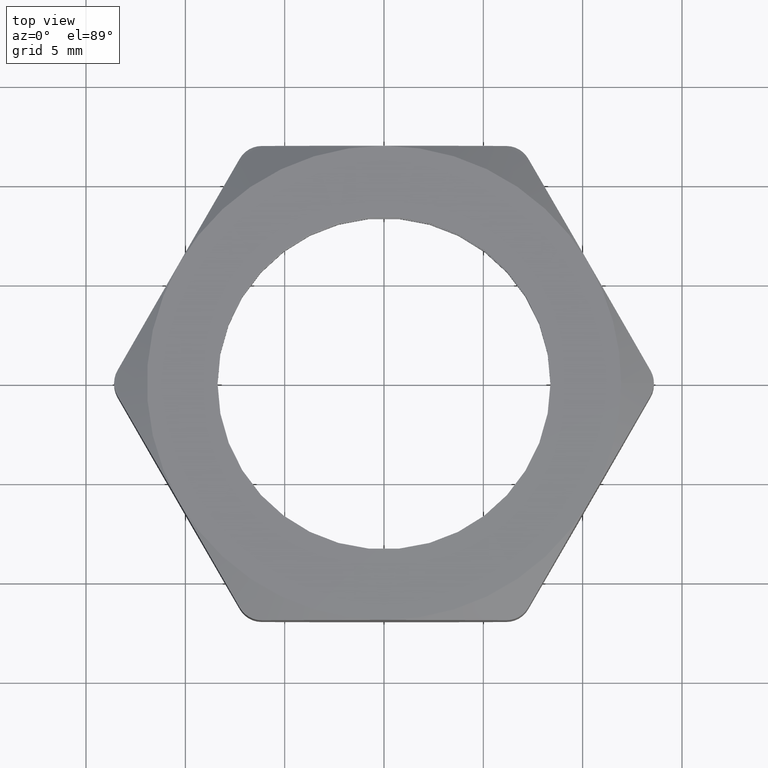
[diagram: clean part render]
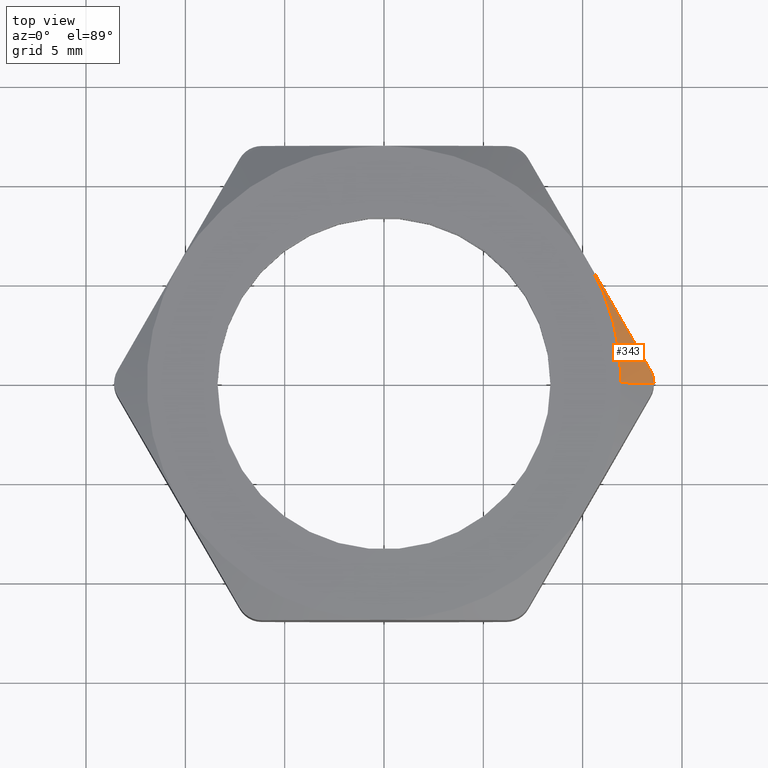
[diagram: same view with one face highlighted and labeled with its STEP entity id]
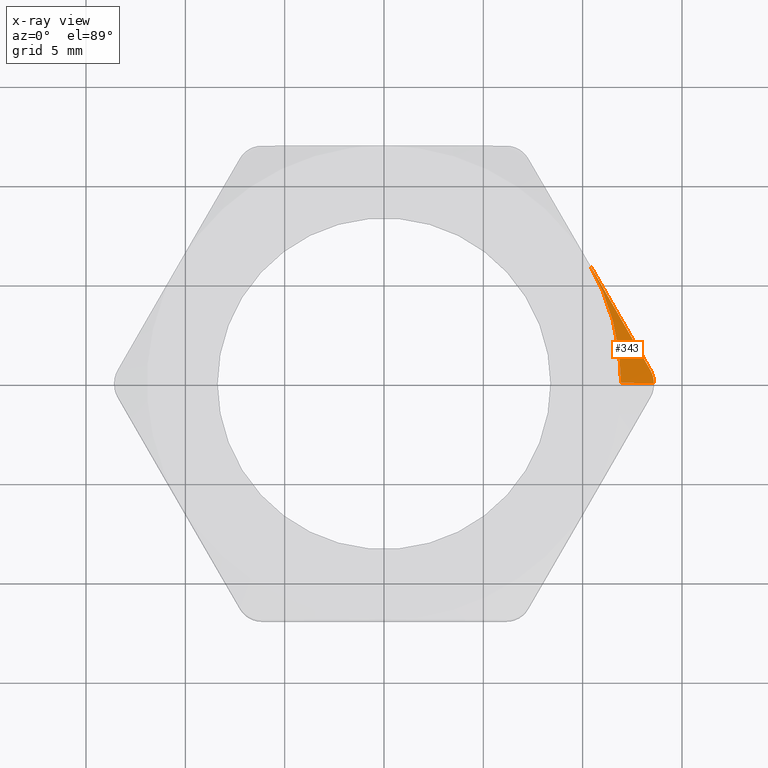
[diagram: x-ray of the same camera — body ghosted, the highlighted face saturated]
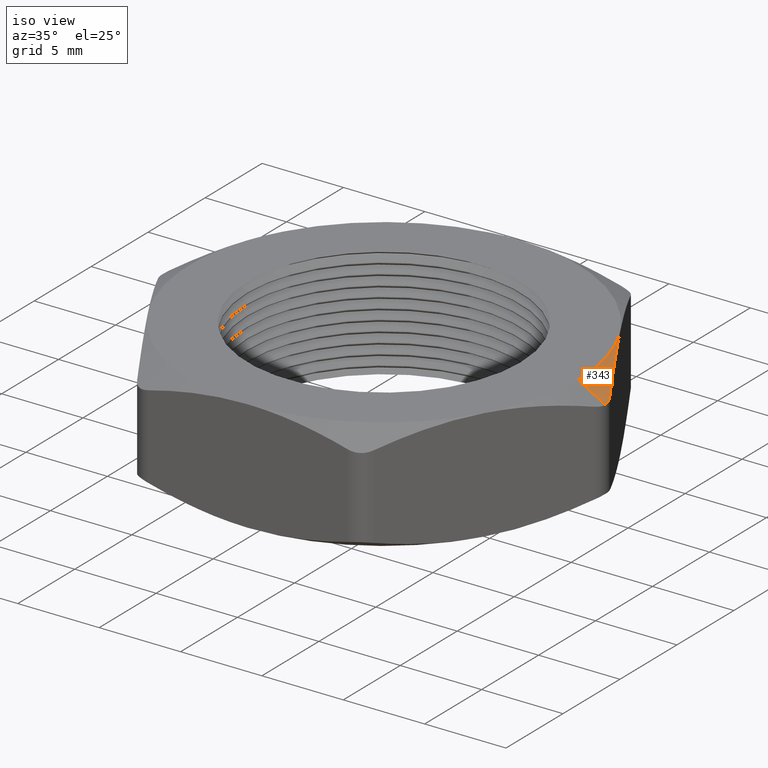
[diagram: same view with one face highlighted and labeled with its STEP entity id]
A machine part, top view. The second image highlights one B-rep face of the part: STEP entity #343.
The next image is the same camera in x-ray: the body ghosted, the highlighted face saturated — about 0% of this face is hidden behind the body in this view.
A second angle (iso view) of the same face is appended — the face is thin or edge-on in the first view.
In plain terms, the highlighted conical surface has half-angle 60 deg.
Its self-contained STEP definition (entity closure, byte-faithful):
#304 = ORIENTED_EDGE ( 'NONE', *, *, #309, .F. ) ;
#307 = VERTEX_POINT ( 'NONE', #1185 ) ;
#309 = EDGE_CURVE ( 'NONE', #307, #330, #1241, .T. ) ;
#330 = VERTEX_POINT ( 'NONE', #1219 ) ;
#334 = VERTEX_POINT ( 'NONE', #1266 ) ;
#336 = ORIENTED_EDGE ( 'NONE', *, *, #337, .T. ) ;
#337 = EDGE_CURVE ( 'NONE', #307, #334, #1265, .T. ) ;
#340 = EDGE_LOOP ( 'NONE', ( #304, #336, #348, #347 ) ) ;
#341 = VERTEX_POINT ( 'NONE', #1256 ) ;
#343 = ADVANCED_FACE ( 'NONE', ( #1255 ), #1254, .T. ) ;
#347 = ORIENTED_EDGE ( 'NONE', *, *, #354, .T. ) ;
#348 = ORIENTED_EDGE ( 'NONE', *, *, #350, .T. ) ;
#350 = EDGE_CURVE ( 'NONE', #334, #341, #1293, .T. ) ;
#354 = EDGE_CURVE ( 'NONE', #341, #330, #1273, .T. ) ;
#1185 = CARTESIAN_POINT ( 'NONE',  ( 0.4700000000000000300, 0.0000000000000000000, 0.2700000000000000200 ) ) ;
#1219 = CARTESIAN_POINT ( 'NONE',  ( 0.4070319397786861200, 0.2349999999999998800, 0.2700000000000000200 ) ) ;
#1237 = DIRECTION ( 'NONE',  ( 1.000000000000000000, 0.0000000000000000000, 0.0000000000000000000 ) ) ;
#1238 = DIRECTION ( 'NONE',  ( 0.0000000000000000000, 0.0000000000000000000, 1.000000000000000000 ) ) ;
#1239 = CARTESIAN_POINT ( 'NONE',  ( 0.0000000000000000000, 0.0000000000000000000, 0.2700000000000000200 ) ) ;
#1240 = AXIS2_PLACEMENT_3D ( 'NONE', #1239, #1238, #1237 ) ;
#1241 = CIRCLE ( 'NONE', #1240, 0.4700000000000000300 ) ;
#1250 = DIRECTION ( 'NONE',  ( 1.000000000000000000, 0.0000000000000000000, 0.0000000000000000000 ) ) ;
#1251 = DIRECTION ( 'NONE',  ( 0.0000000000000000000, 0.0000000000000000000, -1.000000000000000000 ) ) ;
#1252 = CARTESIAN_POINT ( 'NONE',  ( 0.0000000000000000000, 0.0000000000000000000, 0.2700000000000000200 ) ) ;
#1253 = AXIS2_PLACEMENT_3D ( 'NONE', #1252, #1251, #1250 ) ;
#1254 = CONICAL_SURFACE ( 'NONE', #1253, 0.4700000000000000300, 1.047197551196600100 ) ;
#1255 = FACE_OUTER_BOUND ( 'NONE', #340, .T. ) ;
#1256 = CARTESIAN_POINT ( 'NONE',  ( 0.5282754963085003500, 0.02500000000001230800, 0.2360132874683320800 ) ) ;
#1262 = DIRECTION ( 'NONE',  ( 0.8660254037844397100, 0.0000000000000000000, -0.4999999999999979500 ) ) ;
#1263 = VECTOR ( 'NONE', #1262, 39.37007874015748900 ) ;
#1264 = CARTESIAN_POINT ( 'NONE',  ( 0.4700000000000000300, 0.0000000000000000000, 0.2700000000000000200 ) ) ;
#1265 = LINE ( 'NONE', #1264, #1263 ) ;
#1266 = CARTESIAN_POINT ( 'NONE',  ( 0.5349742261194077000, 1.394389015858412700E-014, 0.2324871130595792300 ) ) ;
#1267 = CARTESIAN_POINT ( 'NONE',  ( 0.4480322198200164500, 0.1639854318438635800, 0.2668266885615935300 ) ) ;
#1268 = CARTESIAN_POINT ( 'NONE',  ( 0.4884164419327131600, 0.09403790732052620700, 0.2550759609575153900 ) ) ;
#1269 = CARTESIAN_POINT ( 'NONE',  ( 0.5084165473401796000, 0.05939670859806095400, 0.2465272895328116700 ) ) ;
#1270 = CARTESIAN_POINT ( 'NONE',  ( 0.5282754963085003500, 0.02500000000001230800, 0.2360132874683320800 ) ) ;
#1273 = B_SPLINE_CURVE_WITH_KNOTS ( 'NONE', 3,
 ( #1270, #1269, #1268, #1267, #1324, #1323 ),
 .UNSPECIFIED., .F., .F.,
 ( 4, 2, 4 ),
 ( 0.0007548866005694034200, 0.003864556118015261100, 0.006974225635461118300 ),
 .UNSPECIFIED. ) ;
#1287 = CARTESIAN_POINT ( 'NONE',  ( 0.5282754963085003500, 0.02500000000001230800, 0.2360132874683320800 ) ) ;
#1288 = CARTESIAN_POINT ( 'NONE',  ( 0.5304237173392516400, 0.02127917202886681400, 0.2348759462934132400 ) ) ;
#1289 = CARTESIAN_POINT ( 'NONE',  ( 0.5321149342017708100, 0.01722339589642633500, 0.2339867053256985100 ) ) ;
#1290 = CARTESIAN_POINT ( 'NONE',  ( 0.5343797967742154300, 0.008830702858996059300, 0.2327978154977829500 ) ) ;
#1291 = CARTESIAN_POINT ( 'NONE',  ( 0.5349742261192832500, 0.004391506653093860100, 0.2324871130596442000 ) ) ;
#1292 = CARTESIAN_POINT ( 'NONE',  ( 0.5349742261194077000, 1.394389015858412700E-014, 0.2324871130595792300 ) ) ;
#1293 = B_SPLINE_CURVE_WITH_KNOTS ( 'NONE', 3,
 ( #1292, #1291, #1290, #1289, #1288, #1287 ),
 .UNSPECIFIED., .F., .F.,
 ( 4, 2, 4 ),
 ( 0.0006703003605788029000, 0.001004351054219412900, 0.001338401747860022700 ),
 .UNSPECIFIED. ) ;
#1323 = CARTESIAN_POINT ( 'NONE',  ( 0.4070319397786861200, 0.2349999999999998800, 0.2700000000000000200 ) ) ;
#1324 = CARTESIAN_POINT ( 'NONE',  ( 0.4276460385739924200, 0.1992953335342850000, 0.2700000000000004100 ) ) ;